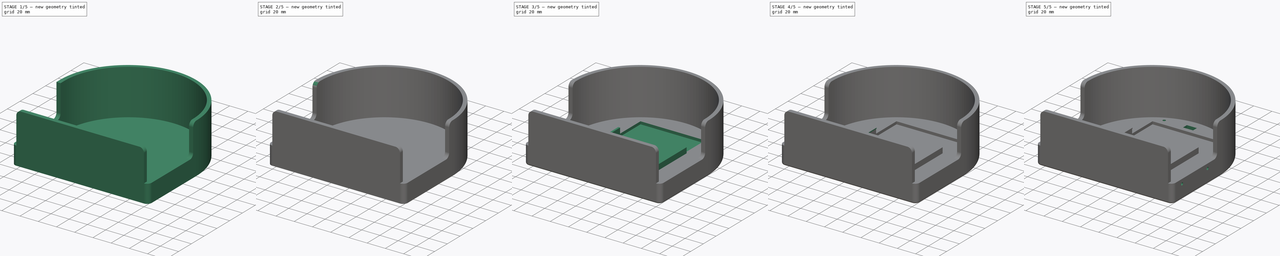
[diagram: build sequence overview — one tinted view per stage of 5, left to right]
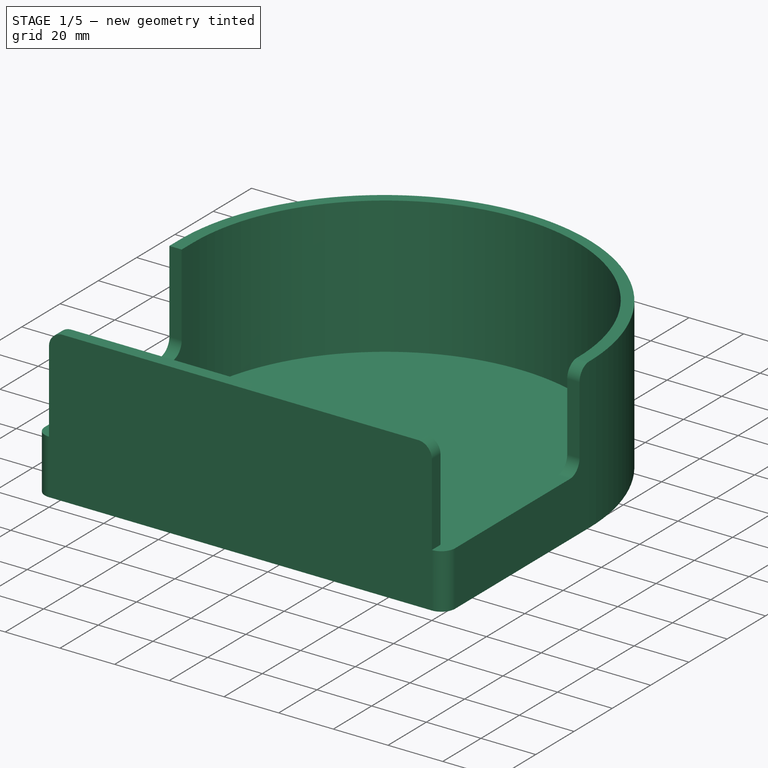
[diagram: stage 1 of 5 — iso view after this stage's code; geometry added in this stage tinted green]
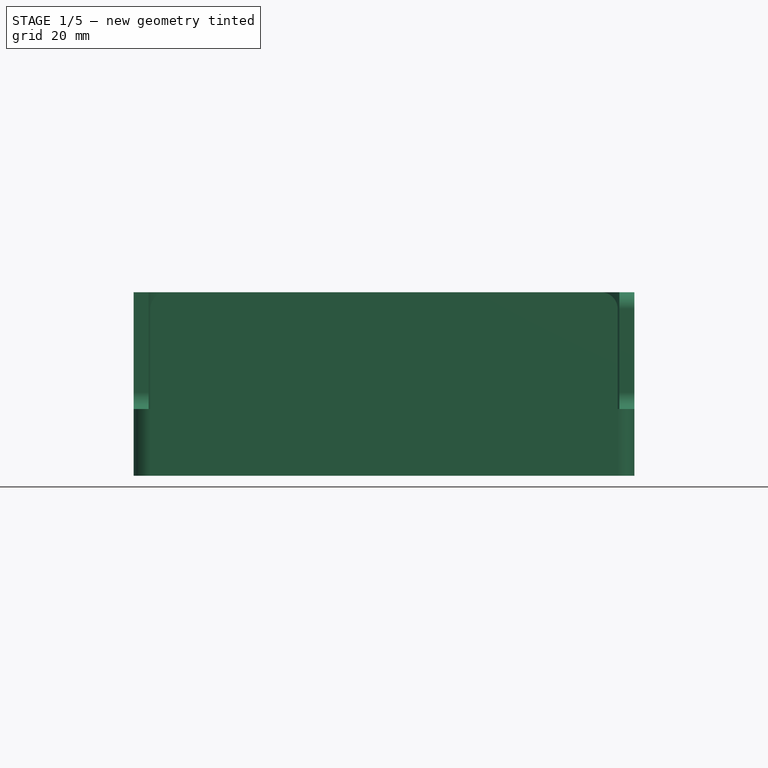
[diagram: stage 1 of 5 — front view after this stage's code; geometry added in this stage tinted green]
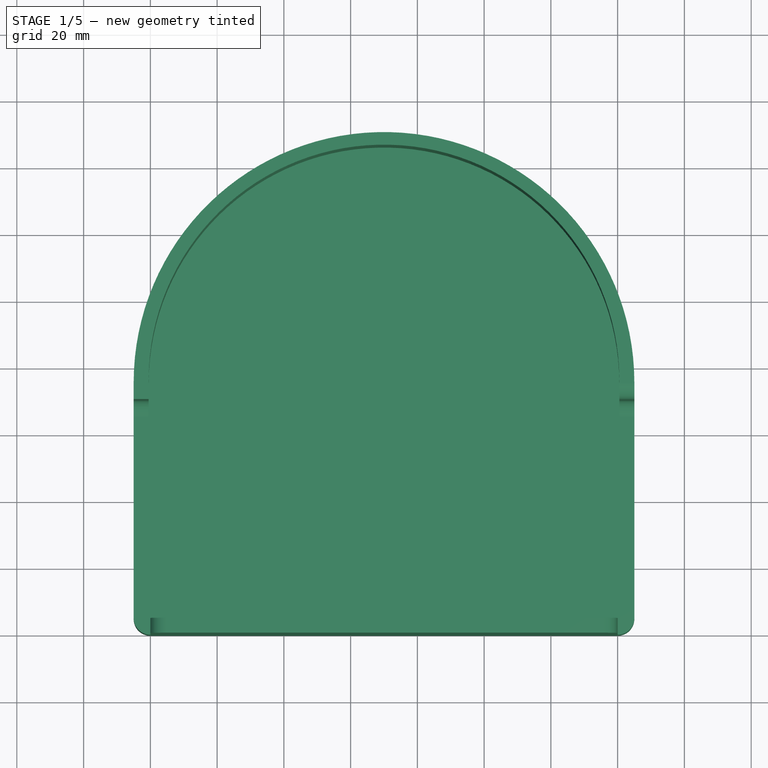
[diagram: stage 1 of 5 — top view after this stage's code; geometry added in this stage tinted green]
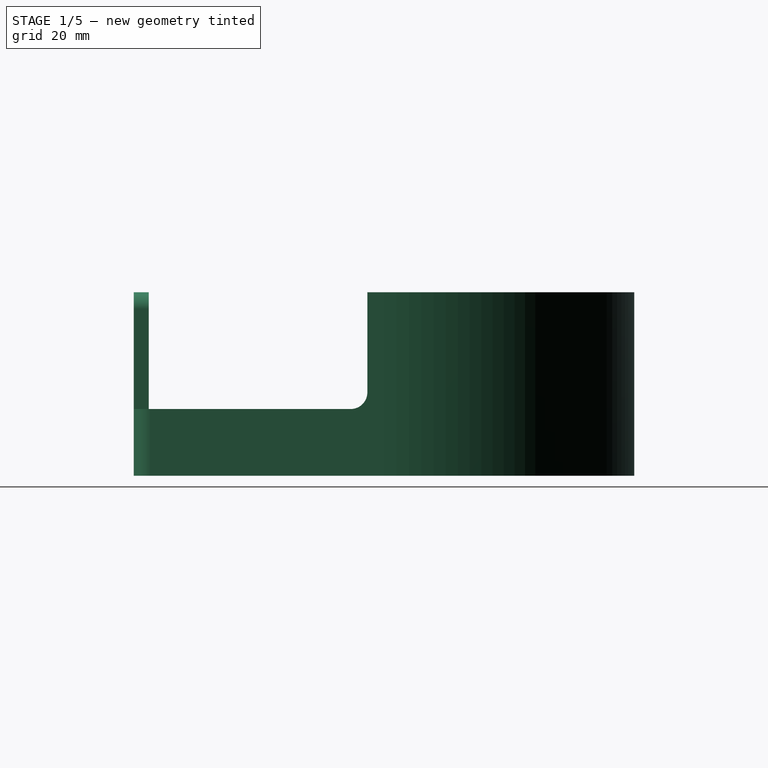
[diagram: stage 1 of 5 — right view after this stage's code; geometry added in this stage tinted green]
FCSTD DOCUMENT  (FreeCAD 0.18R16131 (Git))
Label: Cover
License: All rights reserved
LicenseURL: http://en.wikipedia.org/wiki/All_rights_reserved
objects: Sketcher::SketchObject×12, PartDesign::Pocket×8, PartDesign::Fillet×6, PartDesign::Pad×4, PartDesign::Body×1
note: 43 computed .brp shape members not serialized (recipe doc carries the construction recipe); baked Part::Feature solids carry a one-line shape summary decoded from their .brp

FEATURE [Sketcher::SketchObject] Sketch003
  MapMode = 5
  Placement = pos=(-5,0,0) rot=(0.57735,-0.57735,-0.57735;2.0944rad)
  sketch-geometry (5):
    g0: LineSegment StartX=-70 StartY=55 StartZ=0 EndX=0 EndY=55 EndZ=0
    g1: LineSegment StartX=0 StartY=55 StartZ=0 EndX=0 EndY=20 EndZ=0
    g2: LineSegment StartX=0 StartY=20 StartZ=0 EndX=-65 EndY=20 EndZ=0
    g3: LineSegment StartX=-70 StartY=25 StartZ=0 EndX=-70 EndY=55 EndZ=0
    g4: ArcOfCircle CenterX=-65 CenterY=25 CenterZ=0 NormalX=0 NormalY=0 NormalZ=1 AngleXU=0 Radius=5 StartAngle=3.14159 EndAngle=4.71239
  constraints (13):
    c: Coincident(g0,g1)
    c: Coincident(g1,g2)
    c: Coincident(g3,g0)
    c: Horizontal(g0)
    c: Horizontal(g2)
    c: Vertical(g1)
    c: Vertical(g3)
    c: Vertical(g1,g-1)
    c: DistanceY(g-1,g1) = 20
    c: Tangent(g2,g4) = 1.5708
    c: Tangent(g3,g4) = 1.5708
    c: Radius(g4) = 5
    c: DistanceX(g0,g0) = 70
FEATURE [PartDesign::Body] Body
  Group = -> [Sketch,Pad,Sketch001,Pocket,Sketch003,Pocket002,Fillet,Fillet001,Fillet002,Fillet003,Sketch004,Pocket003,Fillet004,Fillet005,Sketch005,Pocket004,Sketch006,Pad001,Sketch007,Pad002,Sketch008,Pad003,Sketch009,Pocket005,Sketch010,Pocket006,Sketch011,Pocket007,Sketch012,Pocket008]
  Origin = -> Origin
  Tip = -> Pocket008
FEATURE [Sketcher::SketchObject] Sketch
  MapMode = 45
  Placement = pos=(80.4757,117.51,24.6238) rot=(-0.12629,0.080868,0.988692;1.63184rad)
  Support = -> [Pocket002]
  sketch-geometry (6):
    g0: LineSegment StartX=145 StartY=75 StartZ=0 EndX=145 EndY=5 EndZ=0
    g1: LineSegment StartX=140 StartY=0 StartZ=0 EndX=4.75468e-08 EndY=0 EndZ=0
    g2: LineSegment StartX=-5 StartY=5 StartZ=0 EndX=-5 EndY=75 EndZ=0
    g3: ArcOfCircle CenterX=4.75467e-08 CenterY=5 CenterZ=0 NormalX=0 NormalY=0 NormalZ=1 AngleXU=0 Radius=5 StartAngle=3.14159 EndAngle=4.71239
    g4: ArcOfCircle CenterX=140 CenterY=5 CenterZ=0 NormalX=0 NormalY=0 NormalZ=1 AngleXU=0 Radius=5 StartAngle=4.71239 EndAngle=6.28319
    g5: ArcOfCircle CenterX=70 CenterY=75 CenterZ=0 NormalX=0 NormalY=0 NormalZ=1 AngleXU=0 Radius=75 StartAngle=0 EndAngle=3.14159
  constraints (17):
    c: Horizontal(g1)
    c: Vertical(g0)
    c: Vertical(g2)
    c: Tangent(g1,g3) = 1.5708
    c: Tangent(g2,g3) = 1.5708
    c: Tangent(g0,g4) = 1.5708
    c: Tangent(g1,g4) = 1.5708
    c: Radius(g3) = 5
    c: Radius(g4) = 5
    c: DistanceX(g2,g0) = 150
    c: PointOnObject(g-1,g1)
    c: PointOnObject(g-1,g3)
    c: Coincident(g5,g2)
    c: Coincident(g5,g0)
    c: DistanceY(g1,g2) = 75
    c: DistanceY(g1,g0) = 75
    c: Horizontal(g5,g0)
FEATURE [PartDesign::Pad] Pad
  Length = 55
  Length2 = 100
  Profile = -> Sketch
  Type = 0
FEATURE [Sketcher::SketchObject] Sketch001
  ExternalGeometry = -> [Pad]
  MapMode = 5
  Placement = pos=(0,0,55) rot=(0,0,1;0rad)
  Support = -> [Pad]
  sketch-geometry (4):
    g0: LineSegment StartX=140.5 StartY=75.7262 StartZ=0 EndX=140.5 EndY=4.5 EndZ=0
    g1: LineSegment StartX=140.5 StartY=4.5 StartZ=0 EndX=-0.5 EndY=4.5 EndZ=0
    g2: LineSegment StartX=-0.5 StartY=4.5 StartZ=0 EndX=-0.5 EndY=75.7262 EndZ=0
    g3: ArcOfCircle CenterX=70 CenterY=75.7262 CenterZ=0 NormalX=0 NormalY=0 NormalZ=1 AngleXU=0 Radius=70.5 StartAngle=6.28318 EndAngle=9.42478
  constraints (9):
    c: Coincident(g0,g1)
    c: Coincident(g1,g2)
    c: Horizontal(g1)
    c: Vertical(g0)
    c: Vertical(g2)
    c: DistanceX(g1,g1) = 141
    c: DistanceX(g0,g-5) = 4.5
    c: DistanceY(g-4,g1) = 4.5
    c: Radius(g3) = 70.5
FEATURE [PartDesign::Pocket] Pocket
  BaseFeature = -> Pad
  Length = 50
  Length2 = 100
  Profile = -> Sketch001
  Type = 0
FEATURE [PartDesign::Pocket] Pocket002
  BaseFeature = -> Pocket
  Length = 5
  Length2 = 100
  Profile = -> Sketch003
  Type = 0
FEATURE [PartDesign::Fillet] Fillet
  Base = -> Pocket002 [Edge57]
  BaseFeature = -> Pocket002
  Radius = 5
FEATURE [PartDesign::Fillet] Fillet001
  Base = -> Fillet [Edge16]
  BaseFeature = -> Fillet
  Radius = 5
FEATURE [PartDesign::Fillet] Fillet002
  Base = -> Fillet001 [Edge62]
  BaseFeature = -> Fillet001
  Radius = 5
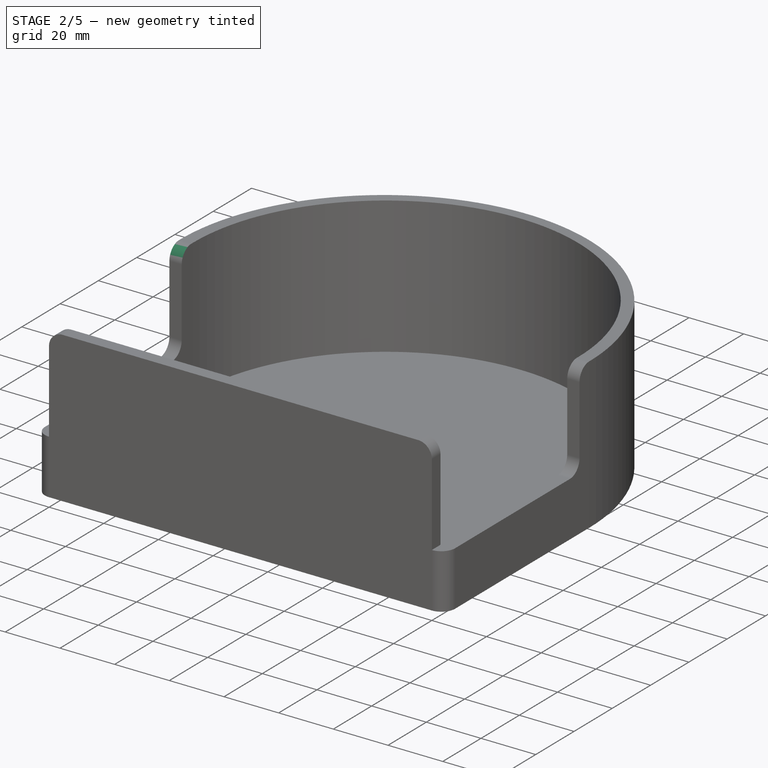
[diagram: stage 2 of 5 — iso view after this stage's code; geometry added in this stage tinted green]
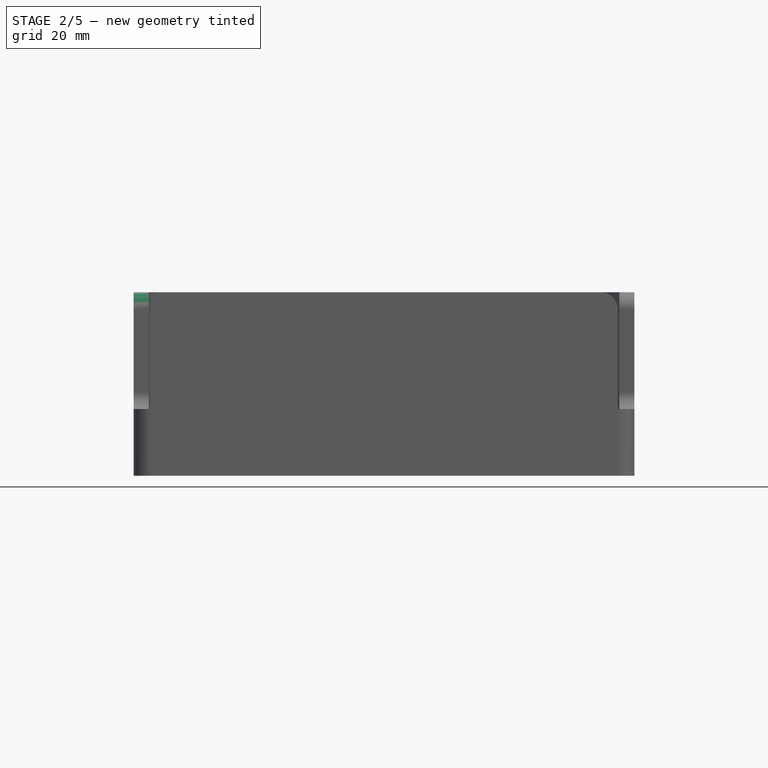
[diagram: stage 2 of 5 — front view after this stage's code; geometry added in this stage tinted green]
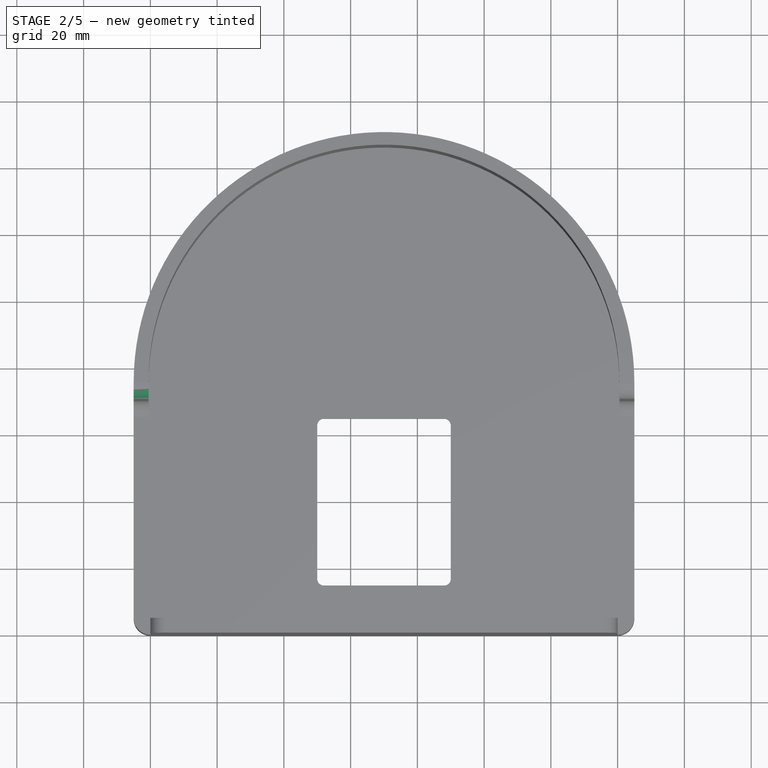
[diagram: stage 2 of 5 — top view after this stage's code; geometry added in this stage tinted green]
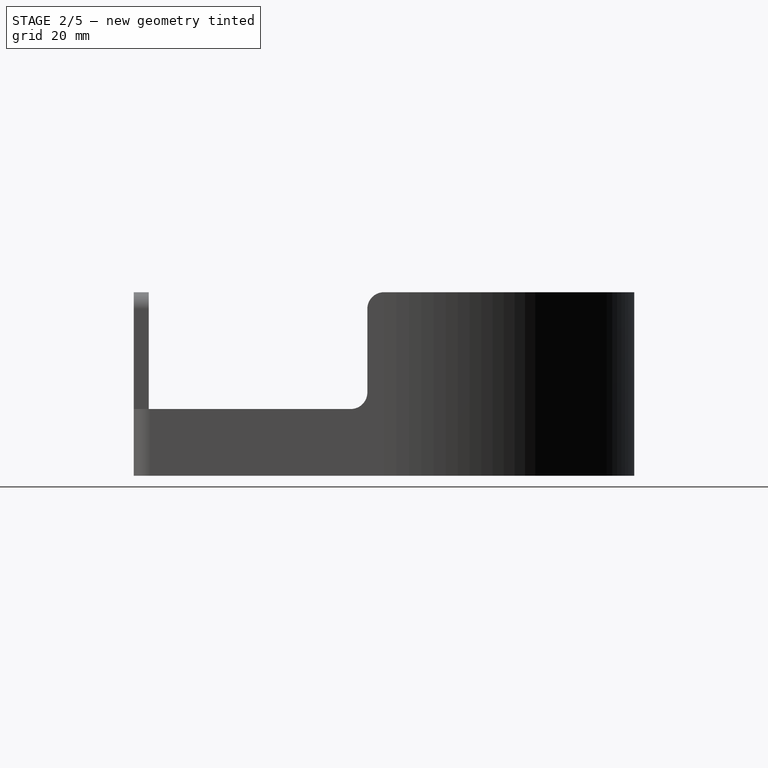
[diagram: stage 2 of 5 — right view after this stage's code; geometry added in this stage tinted green]
FEATURE [PartDesign::Fillet] Fillet003
  Base = -> Fillet002 [Edge34]
  BaseFeature = -> Fillet002
  Radius = 5
FEATURE [PartDesign::Fillet] Fillet004
  Base = -> Pocket003 [Edge69,Edge68,Edge67,Edge66,Edge65,Edge64,Edge63,Edge62]
  BaseFeature = -> Pocket003
  Radius = 2
FEATURE [Sketcher::SketchObject] Sketch004
  ExternalGeometry = -> [Fillet003]
  MapMode = 5
  Placement = pos=(0,0,0) rot=(1,0,0;3.14159rad)
  Support = -> [Fillet003]
  sketch-geometry (8):
    g0: LineSegment StartX=52 StartY=-15 StartZ=0 EndX=88 EndY=-15 EndZ=0
    g1: LineSegment StartX=90 StartY=-17 StartZ=0 EndX=90 EndY=-63 EndZ=0
    g2: LineSegment StartX=88 StartY=-65 StartZ=0 EndX=52 EndY=-65 EndZ=0
    g3: LineSegment StartX=50 StartY=-63 StartZ=0 EndX=50 EndY=-17 EndZ=0
    g4: ArcOfCircle CenterX=52 CenterY=-17 CenterZ=0 NormalX=0 NormalY=0 NormalZ=1 AngleXU=0 Radius=2 StartAngle=1.5708 EndAngle=3.14159
    g5: ArcOfCircle CenterX=52 CenterY=-63 CenterZ=0 NormalX=0 NormalY=0 NormalZ=1 AngleXU=0 Radius=2 StartAngle=3.14159 EndAngle=4.71239
    g6: ArcOfCircle CenterX=88 CenterY=-63 CenterZ=0 NormalX=0 NormalY=0 NormalZ=1 AngleXU=0 Radius=2 StartAngle=4.71239 EndAngle=6.28319
    g7: ArcOfCircle CenterX=88 CenterY=-17 CenterZ=0 NormalX=0 NormalY=0 NormalZ=1 AngleXU=0 Radius=2 StartAngle=9e-16 EndAngle=1.5708
  constraints (20):
    c: Horizontal(g0)
    c: Horizontal(g2)
    c: Vertical(g1)
    c: Vertical(g3)
    c: Tangent(g0,g4) = 1.5708
    c: Tangent(g3,g4) = 1.5708
    c: Radius(g4) = 2
    c: Tangent(g2,g5) = 1.5708
    c: Tangent(g3,g5) = 1.5708
    c: Tangent(g1,g6) = 1.5708
    c: Tangent(g2,g6) = 1.5708
    c: Tangent(g0,g7) = 1.5708
    c: Tangent(g1,g7) = 1.5708
    c: Radius(g5) = 2
    c: Radius(g7) = 2
    c: Radius(g6) = 2
    c: DistanceY(g2,g0) = 50
    c: DistanceX(g3,g1) = 40
    c: DistanceX(g-3,g3) = 50
    c: DistanceY(g0,g-3) = 15
FEATURE [PartDesign::Pocket] Pocket003
  BaseFeature = -> Fillet003
  Length = 5
  Length2 = 100
  Profile = -> Sketch004
  Type = 0
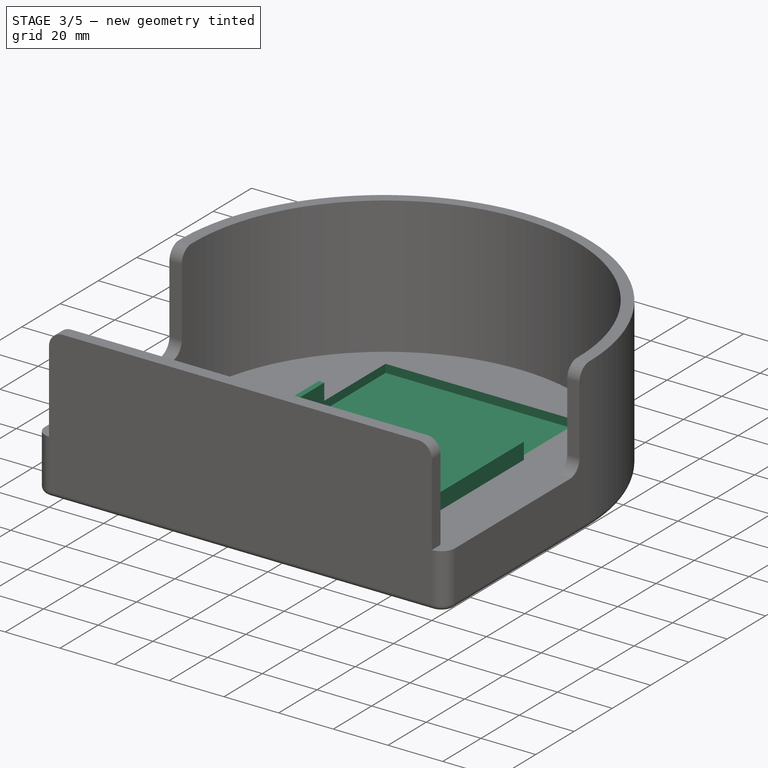
[diagram: stage 3 of 5 — iso view after this stage's code; geometry added in this stage tinted green]
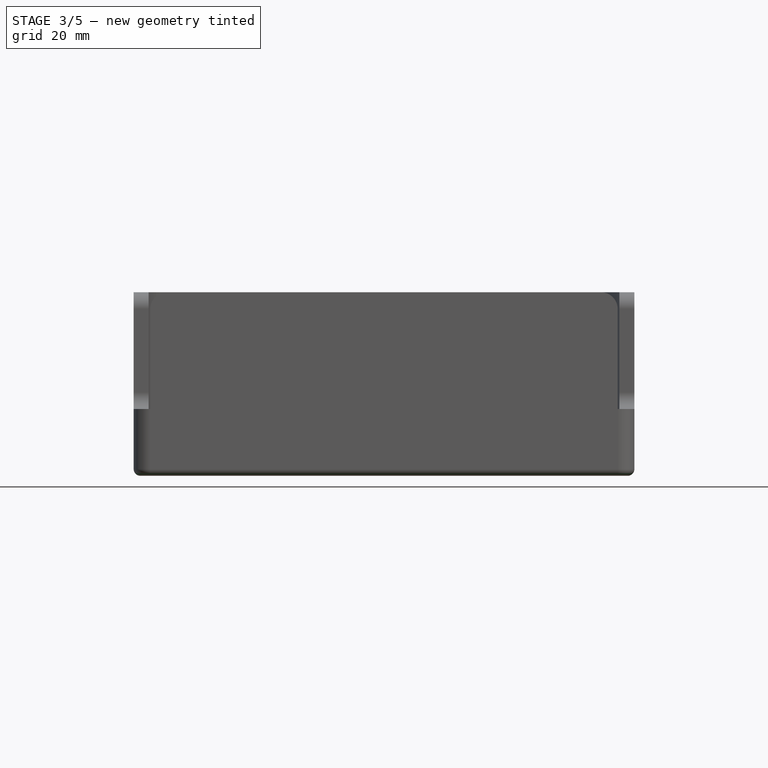
[diagram: stage 3 of 5 — front view after this stage's code; geometry added in this stage tinted green]
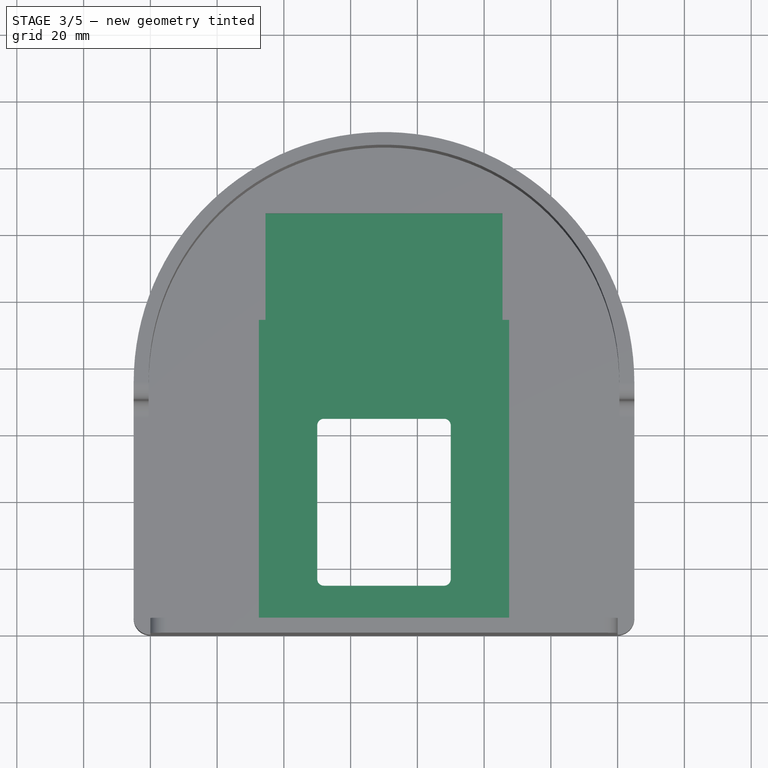
[diagram: stage 3 of 5 — top view after this stage's code; geometry added in this stage tinted green]
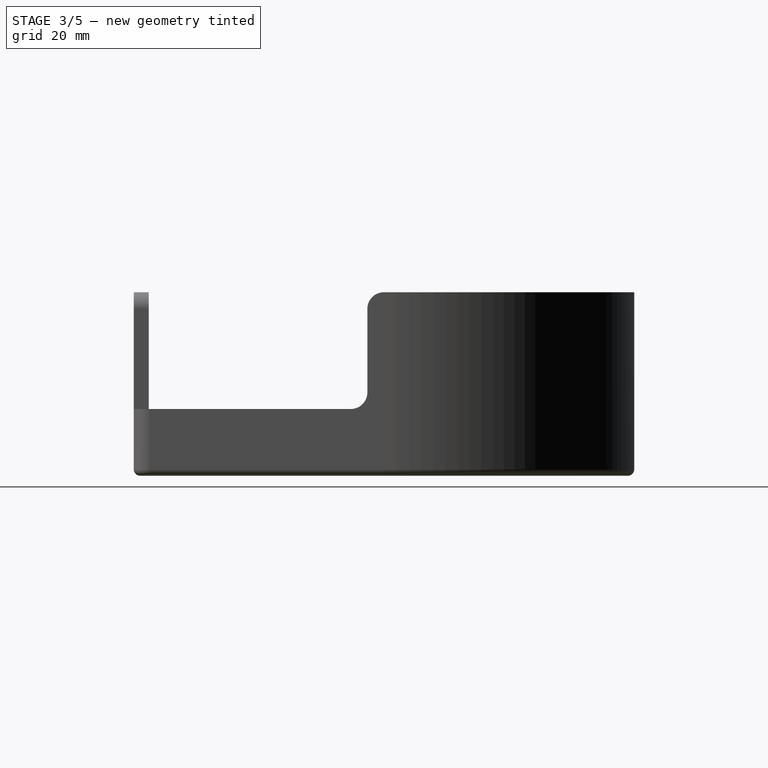
[diagram: stage 3 of 5 — right view after this stage's code; geometry added in this stage tinted green]
FEATURE [PartDesign::Fillet] Fillet005
  Base = -> Fillet004 [Edge10,Edge9,Edge11,Edge13,Edge14,Edge12]
  BaseFeature = -> Fillet004
  Radius = 2
FEATURE [Sketcher::SketchObject] Sketch005
  ExternalGeometry = -> [Fillet005]
  MapMode = 5
  Placement = pos=(0,0,5) rot=(0,0,1;0rad)
  Support = -> [Fillet005]
  sketch-geometry (4):
    g0: LineSegment StartX=34.5 StartY=126.5 StartZ=0 EndX=105.5 EndY=126.5 EndZ=0
    g1: LineSegment StartX=105.5 StartY=126.5 StartZ=0 EndX=105.5 EndY=4.5 EndZ=0
    g2: LineSegment StartX=105.5 StartY=4.5 StartZ=0 EndX=34.5 EndY=4.5 EndZ=0
    g3: LineSegment StartX=34.5 StartY=4.5 StartZ=0 EndX=34.5 EndY=126.5 EndZ=0
  constraints (12):
    c: Coincident(g0,g1)
    c: Coincident(g1,g2)
    c: Coincident(g2,g3)
    c: Coincident(g3,g0)
    c: Horizontal(g0)
    c: Horizontal(g2)
    c: Vertical(g1)
    c: Vertical(g3)
    c: DistanceX(g2,g2) = 71
    c: DistanceY(g3,g3) = 122
    c: PointOnObject(g2,g-3)
    c: DistanceX(g-5,g2) = 35
FEATURE [PartDesign::Pocket] Pocket004
  BaseFeature = -> Fillet005
  Length = 3
  Length2 = 100
  Profile = -> Sketch005
  Type = 0
FEATURE [Sketcher::SketchObject] Sketch006
  ExternalGeometry = -> [Pocket004]
  MapMode = 5
  Placement = pos=(0,0,5) rot=(0,0,1;0rad)
  Support = -> [Pocket004]
  sketch-geometry (8):
    g0: LineSegment StartX=32.5 StartY=94.5 StartZ=0 EndX=34.5 EndY=94.5 EndZ=0
    g1: LineSegment StartX=34.5 StartY=94.5 StartZ=0 EndX=34.5 EndY=4.5 EndZ=0
    g2: LineSegment StartX=34.5 StartY=4.5 StartZ=0 EndX=32.5 EndY=4.5 EndZ=0
    g3: LineSegment StartX=32.5 StartY=4.5 StartZ=0 EndX=32.5 EndY=94.5 EndZ=0
    g4: LineSegment StartX=105.5 StartY=94.5 StartZ=0 EndX=107.5 EndY=94.5 EndZ=0
    g5: LineSegment StartX=107.5 StartY=94.5 StartZ=0 EndX=107.5 EndY=4.5 EndZ=0
    g6: LineSegment StartX=107.5 StartY=4.5 StartZ=0 EndX=105.5 EndY=4.5 EndZ=0
    g7: LineSegment StartX=105.5 StartY=4.5 StartZ=0 EndX=105.5 EndY=94.5 EndZ=0
  constraints (22):
    c: Coincident(g0,g1)
    c: Coincident(g1,g2)
    c: Coincident(g2,g3)
    c: Coincident(g3,g0)
    c: Horizontal(g0)
    c: Horizontal(g2)
    c: Vertical(g1)
    c: Vertical(g3)
    c: DistanceX(g0,g0) = 2
    c: Coincident(g1,g-4)
    c: DistanceY(g3,g3) = 90
    c: Coincident(g4,g5)
    c: Coincident(g5,g6)
    c: Coincident(g6,g7)
    c: Coincident(g7,g4)
    c: Horizontal(g4)
    c: Horizontal(g6)
    c: Vertical(g5)
    c: Vertical(g7)
    c: DistanceX(g4,g4) = 2
    c: Coincident(g6,g-5)
    c: DistanceY(g5,g5) = 90
FEATURE [PartDesign::Pad] Pad001
  BaseFeature = -> Pocket004
  Length = 6
  Length2 = 100
  Profile = -> Sketch006
  Type = 0
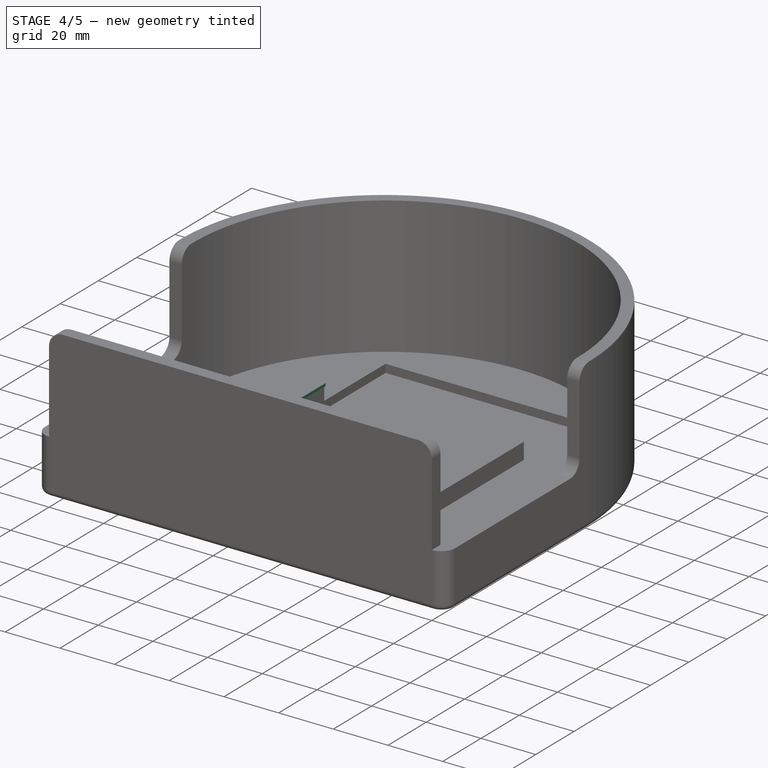
[diagram: stage 4 of 5 — iso view after this stage's code; geometry added in this stage tinted green]
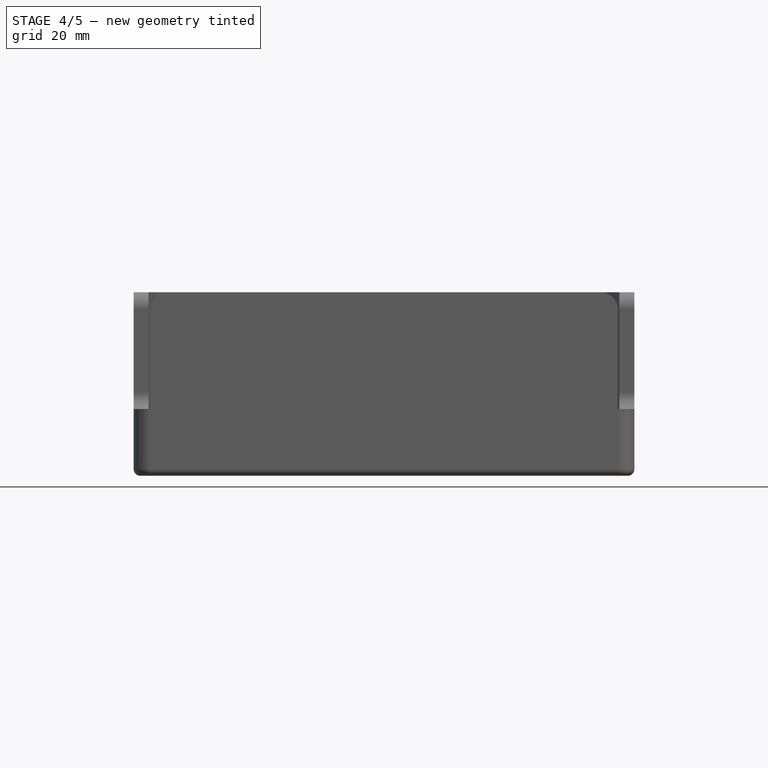
[diagram: stage 4 of 5 — front view after this stage's code; geometry added in this stage tinted green]
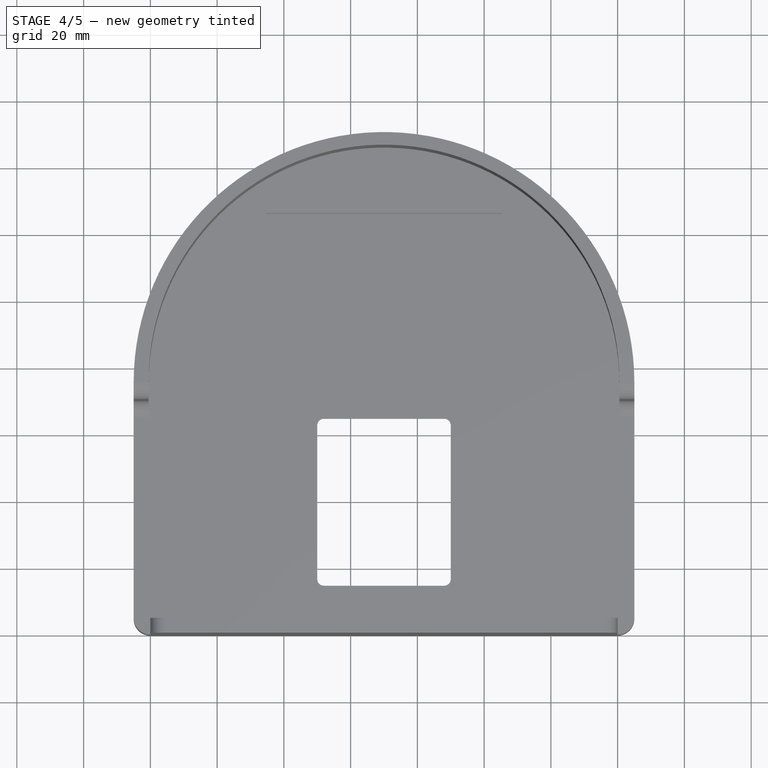
[diagram: stage 4 of 5 — top view after this stage's code; geometry added in this stage tinted green]
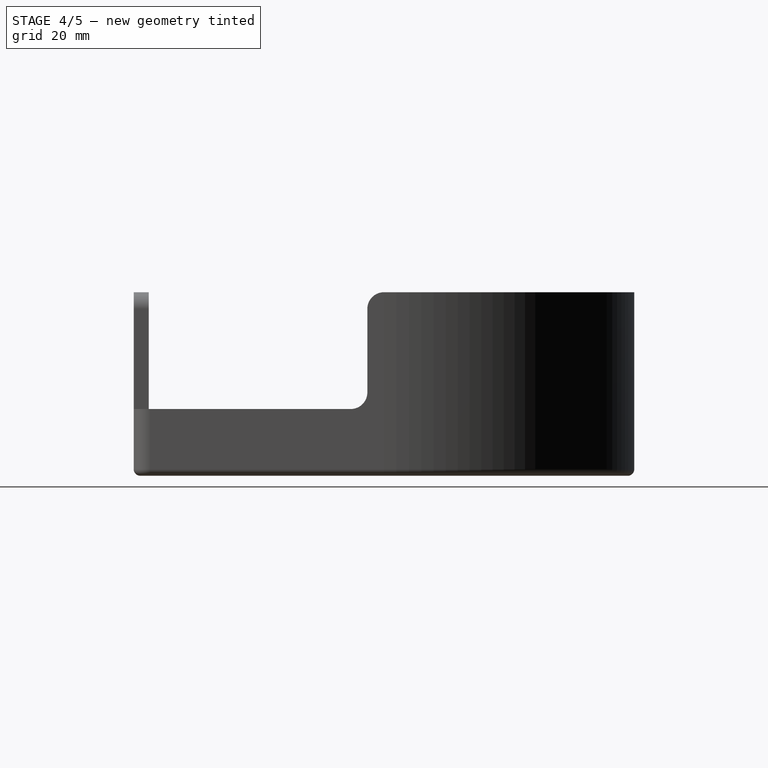
[diagram: stage 4 of 5 — right view after this stage's code; geometry added in this stage tinted green]
FEATURE [Sketcher::SketchObject] Sketch007
  ExternalGeometry = -> [Pad001]
  MapMode = 5
  Placement = pos=(34.5,0,0) rot=(0.57735,0.57735,0.57735;2.0944rad)
  Support = -> [Pad001]
  sketch-geometry (4):
    g0: LineSegment StartX=9.5 StartY=11 StartZ=0 EndX=94.5 EndY=11 EndZ=0
    g1: LineSegment StartX=94.5 StartY=11 StartZ=0 EndX=94.5 EndY=10 EndZ=0
    g2: LineSegment StartX=94.5 StartY=10 StartZ=0 EndX=9.5 EndY=10 EndZ=0
    g3: LineSegment StartX=9.5 StartY=10 StartZ=0 EndX=9.5 EndY=11 EndZ=0
  constraints (10):
    c: Coincident(g0,g1)
    c: Coincident(g1,g2)
    c: Coincident(g2,g3)
    c: Coincident(g3,g0)
    c: Horizontal(g2)
    c: Vertical(g1)
    c: Vertical(g3)
    c: DistanceY(g1,g1) = 1
    c: DistanceX(g0,g0) = 85
    c: Tangent(g0,g-3) = 1.5708
FEATURE [PartDesign::Pad] Pad002
  BaseFeature = -> Pad001
  Length = 0.5
  Length2 = 100
  Profile = -> Sketch007
  Type = 0
FEATURE [Sketcher::SketchObject] Sketch008
  ExternalGeometry = -> [Pad002]
  MapMode = 5
  Placement = pos=(105.5,0,0) rot=(0.57735,-0.57735,-0.57735;2.0944rad)
  Support = -> [Pad002]
  sketch-geometry (4):
    g0: LineSegment StartX=-94.5 StartY=11 StartZ=0 EndX=-9.5 EndY=11 EndZ=0
    g1: LineSegment StartX=-9.5 StartY=11 StartZ=0 EndX=-9.5 EndY=10 EndZ=0
    g2: LineSegment StartX=-9.5 StartY=10 StartZ=0 EndX=-94.5 EndY=10 EndZ=0
    g3: LineSegment StartX=-94.5 StartY=10 StartZ=0 EndX=-94.5 EndY=11 EndZ=0
  constraints (11):
    c: Coincident(g0,g1)
    c: Coincident(g1,g2)
    c: Coincident(g2,g3)
    c: Coincident(g3,g0)
    c: Horizontal(g0)
    c: Horizontal(g2)
    c: Vertical(g1)
    c: Vertical(g3)
    c: DistanceY(g3,g3) = 1
    c: DistanceX(g0,g0) = 85
    c: Coincident(g0,g-3)
FEATURE [PartDesign::Pad] Pad003
  BaseFeature = -> Pad002
  Length = 0.5
  Length2 = 100
  Profile = -> Sketch008
  Type = 0
FEATURE [Sketcher::SketchObject] Sketch009
  ExternalGeometry = -> [Pad003]
  MapMode = 5
  Placement = pos=(0,0,0) rot=(1,0,0;3.14159rad)
  Support = -> [Pad003]
  sketch-geometry (4):
    g0: LineSegment StartX=47 StartY=-133.2 StartZ=0 EndX=93 EndY=-133.2 EndZ=0
    g1: LineSegment StartX=93 StartY=-133.2 StartZ=0 EndX=93 EndY=-135 EndZ=0
    g2: LineSegment StartX=93 StartY=-135 StartZ=0 EndX=47 EndY=-135 EndZ=0
    g3: LineSegment StartX=47 StartY=-135 StartZ=0 EndX=47 EndY=-133.2 EndZ=0
  constraints (12):
    c: Coincident(g0,g1)
    c: Coincident(g1,g2)
    c: Coincident(g2,g3)
    c: Coincident(g3,g0)
    c: Horizontal(g0)
    c: Horizontal(g2)
    c: Vertical(g1)
    c: Vertical(g3)
    c: DistanceX(g2,g2) = 46
    c: DistanceY(g3,g3) = 1.8
    c: DistanceY(g2,g-3) = 60
    c: DistanceX(g0,g-3) = 50
FEATURE [PartDesign::Pocket] Pocket005
  BaseFeature = -> Pad003
  Length = 2
  Length2 = 100
  Profile = -> Sketch009
  Type = 0
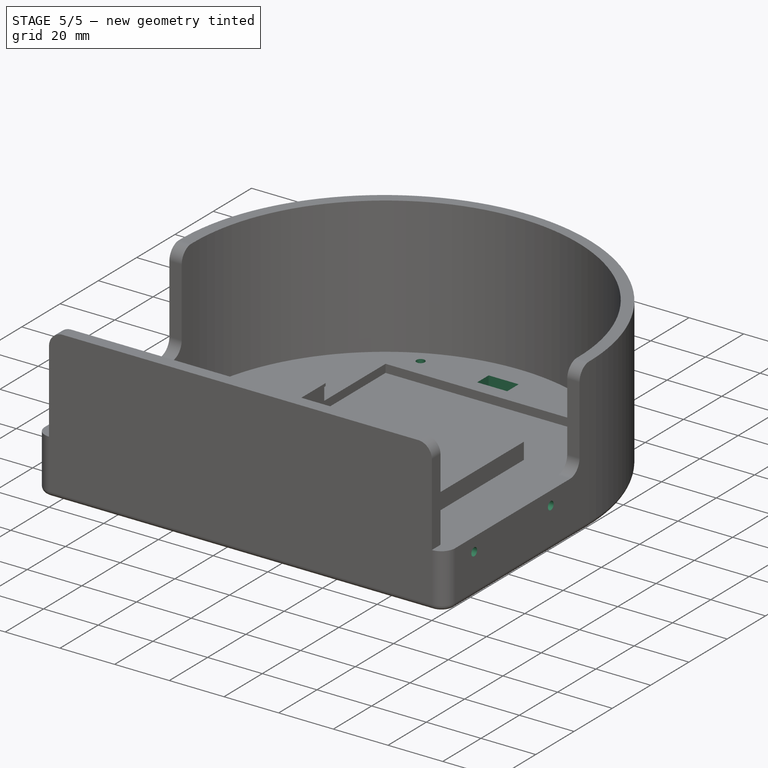
[diagram: stage 5 of 5 — iso view after this stage's code; geometry added in this stage tinted green]
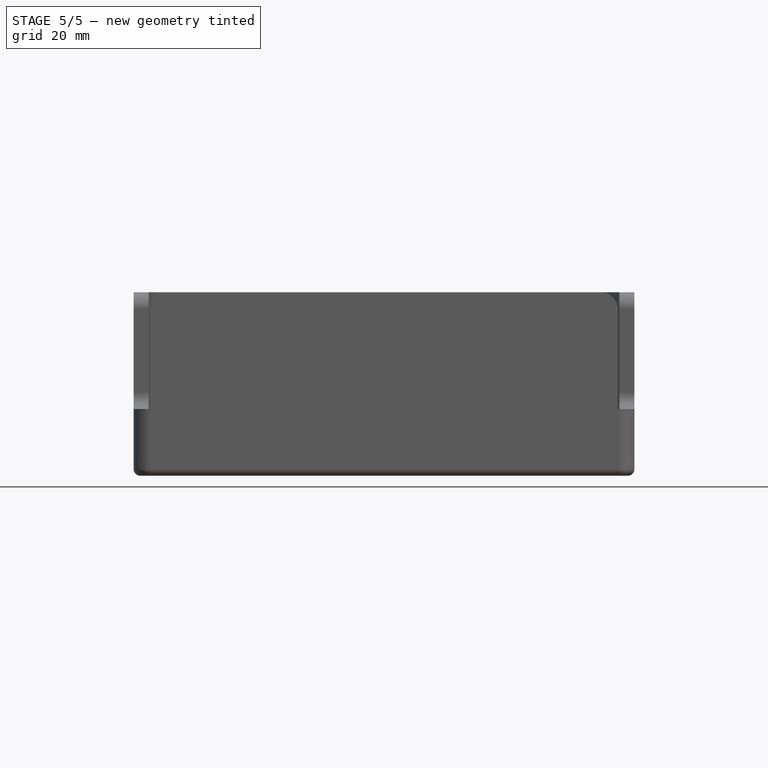
[diagram: stage 5 of 5 — front view after this stage's code; geometry added in this stage tinted green]
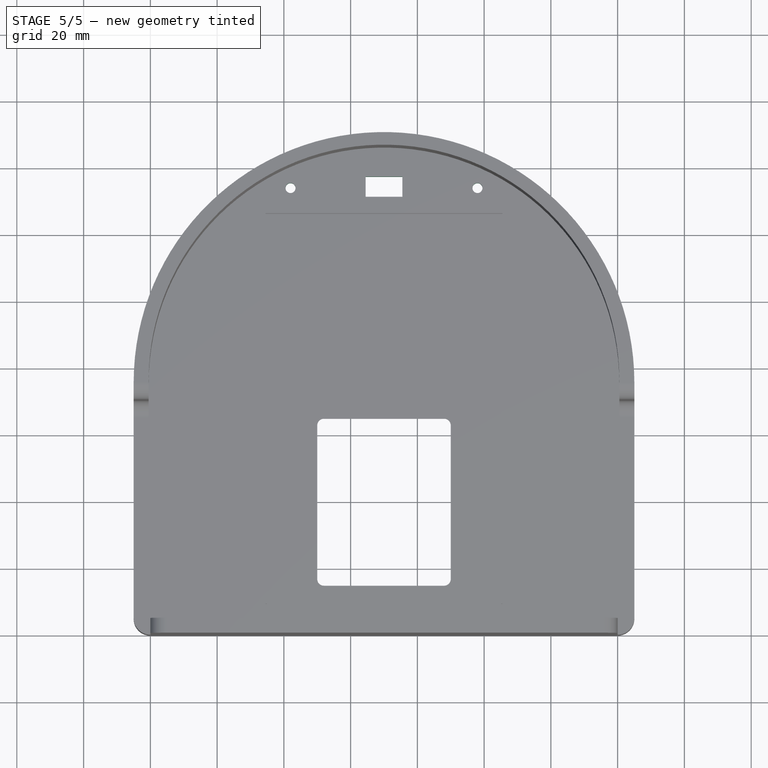
[diagram: stage 5 of 5 — top view after this stage's code; geometry added in this stage tinted green]
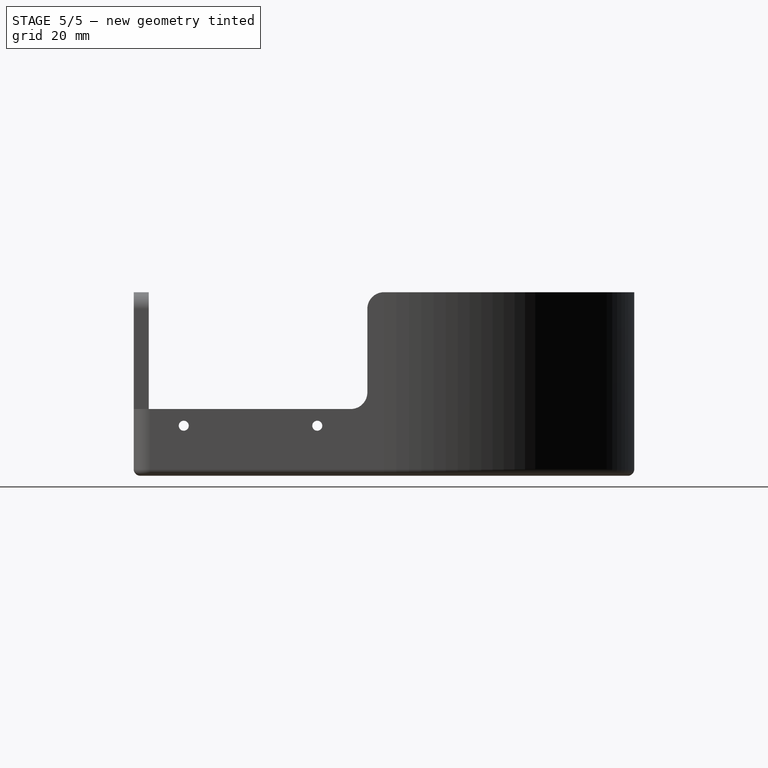
[diagram: stage 5 of 5 — right view after this stage's code; geometry added in this stage tinted green]
FEATURE [Sketcher::SketchObject] Sketch010
  ExternalGeometry = -> [Pocket005]
  MapMode = 5
  Placement = pos=(0,0,0) rot=(1,0,0;3.14159rad)
  Support = -> [Pocket005]
  sketch-geometry (4):
    g0: LineSegment StartX=64.5 StartY=-131.5 StartZ=0 EndX=75.5 EndY=-131.5 EndZ=0
    g1: LineSegment StartX=75.5 StartY=-131.5 StartZ=0 EndX=75.5 EndY=-137.5 EndZ=0
    g2: LineSegment StartX=75.5 StartY=-137.5 StartZ=0 EndX=64.5 EndY=-137.5 EndZ=0
    g3: LineSegment StartX=64.5 StartY=-137.5 StartZ=0 EndX=64.5 EndY=-131.5 EndZ=0
  constraints (12):
    c: Coincident(g0,g1)
    c: Coincident(g1,g2)
    c: Coincident(g2,g3)
    c: Coincident(g3,g0)
    c: Horizontal(g0)
    c: Horizontal(g2)
    c: Vertical(g1)
    c: Vertical(g3)
    c: DistanceX(g0,g0) = 11
    c: DistanceY(g3,g3) = 6
    c: DistanceX(g0,g-3) = 17.5
    c: DistanceY(g1,g-4) = 2.5
FEATURE [PartDesign::Pocket] Pocket006
  BaseFeature = -> Pocket005
  Length = 5
  Length2 = 100
  Profile = -> Sketch010
  Type = 0
FEATURE [Sketcher::SketchObject] Sketch011
  ExternalGeometry = -> [Pocket006]
  MapMode = 5
  Placement = pos=(0,0,0) rot=(1,0,0;3.14159rad)
  Support = -> [Pocket006]
  sketch-geometry (2):
    g0: Circle CenterX=42 CenterY=-134.1 CenterZ=0 NormalX=0 NormalY=0 NormalZ=1 AngleXU=0 Radius=1.5
    g1: Circle CenterX=98 CenterY=-134.1 CenterZ=0 NormalX=0 NormalY=0 NormalZ=1 AngleXU=0 Radius=1.5
  constraints (7):
    c: Radius(g0) = 1.5
    c: Equal(g0,g1) = 1.5
    c: DistanceX(g0,g-3) = 5
    c: DistanceX(g-4,g1) = 5
    c: DistanceY(g-3,g-3) = 1.8
    c: DistanceY(g-4,g1) = 0.9
    c: DistanceY(g-3,g0) = 0.9
FEATURE [PartDesign::Pocket] Pocket007
  BaseFeature = -> Pocket006
  Length = 5
  Length2 = 100
  Profile = -> Sketch011
  Type = 0
FEATURE [Sketcher::SketchObject] Sketch012
  ExternalGeometry = -> [Pocket007]
  MapMode = 5
  Placement = pos=(145,0,0) rot=(0.57735,0.57735,0.57735;2.0944rad)
  Support = -> [Pocket007]
  sketch-geometry (2):
    g0: Circle CenterX=15 CenterY=15 CenterZ=0 NormalX=0 NormalY=0 NormalZ=1 AngleXU=0 Radius=1.5
    g1: Circle CenterX=55 CenterY=15 CenterZ=0 NormalX=0 NormalY=0 NormalZ=1 AngleXU=0 Radius=1.5
  constraints (6):
    c: Radius(g0) = 1.5
    c: DistanceY(g-4,g0) = 13
    c: DistanceX(g-4,g0) = 10
    c: Equal(g0,g1) = 1.5
    c: DistanceX(g0,g1) = 40
    c: DistanceY(g-4,g1) = 13
FEATURE [PartDesign::Pocket] Pocket008
  BaseFeature = -> Pocket007
  Length = 150
  Length2 = 100
  Profile = -> Sketch012
  Type = 0
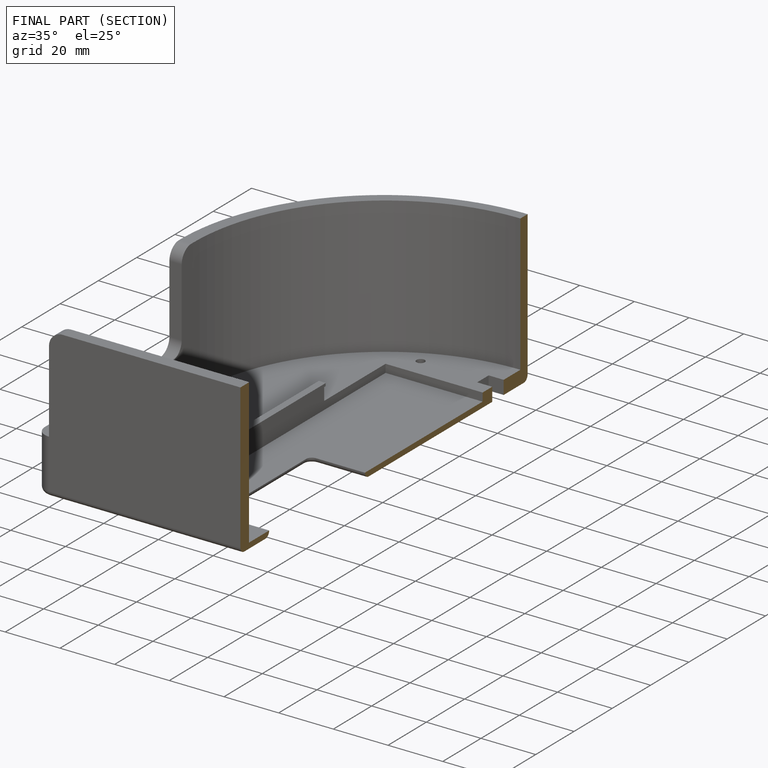
[diagram: finished part — half-section view (interior)]
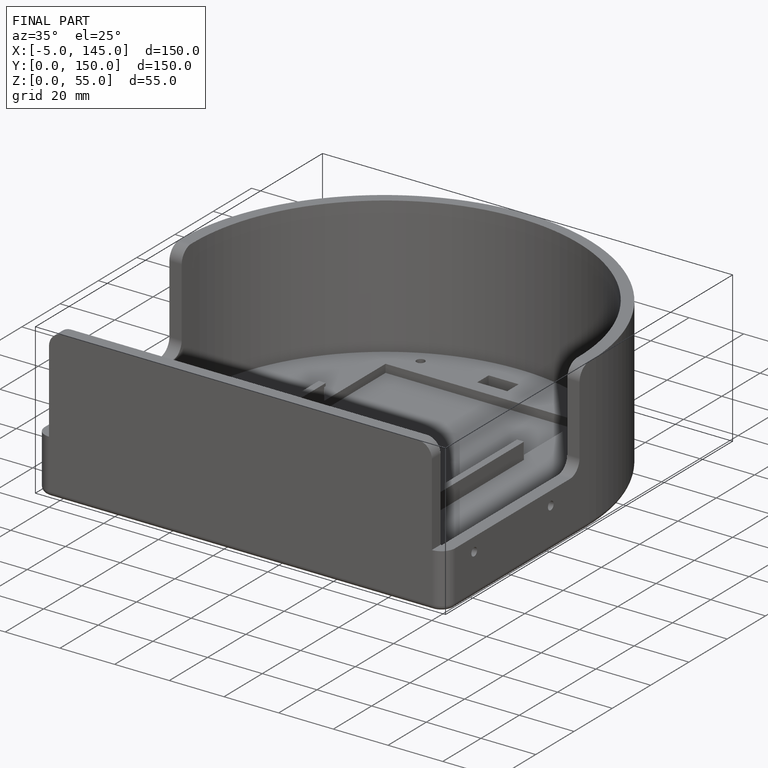
[diagram: finished part — iso view with bounding-box wireframe]
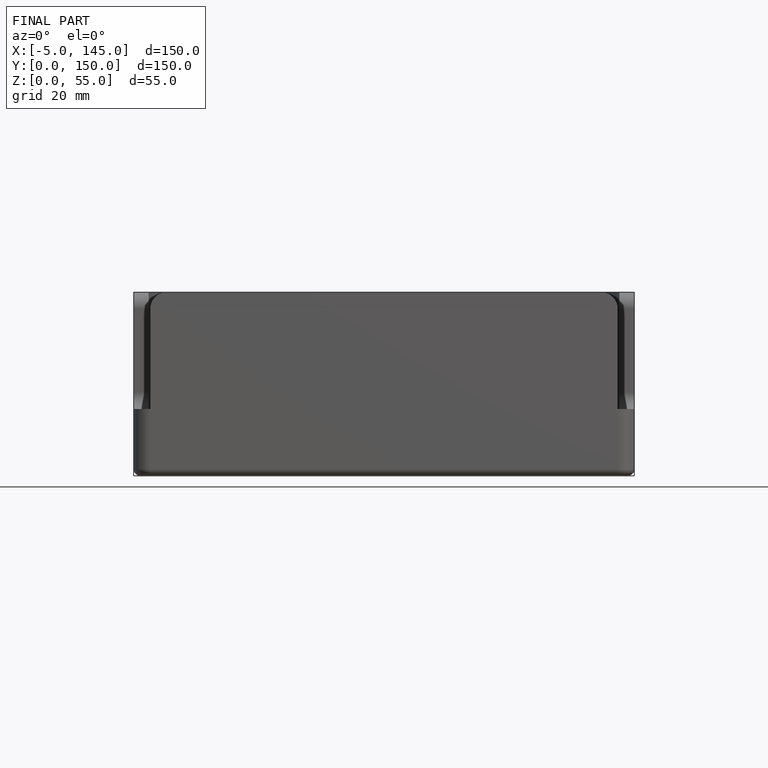
[diagram: finished part — front view with bounding-box wireframe]
